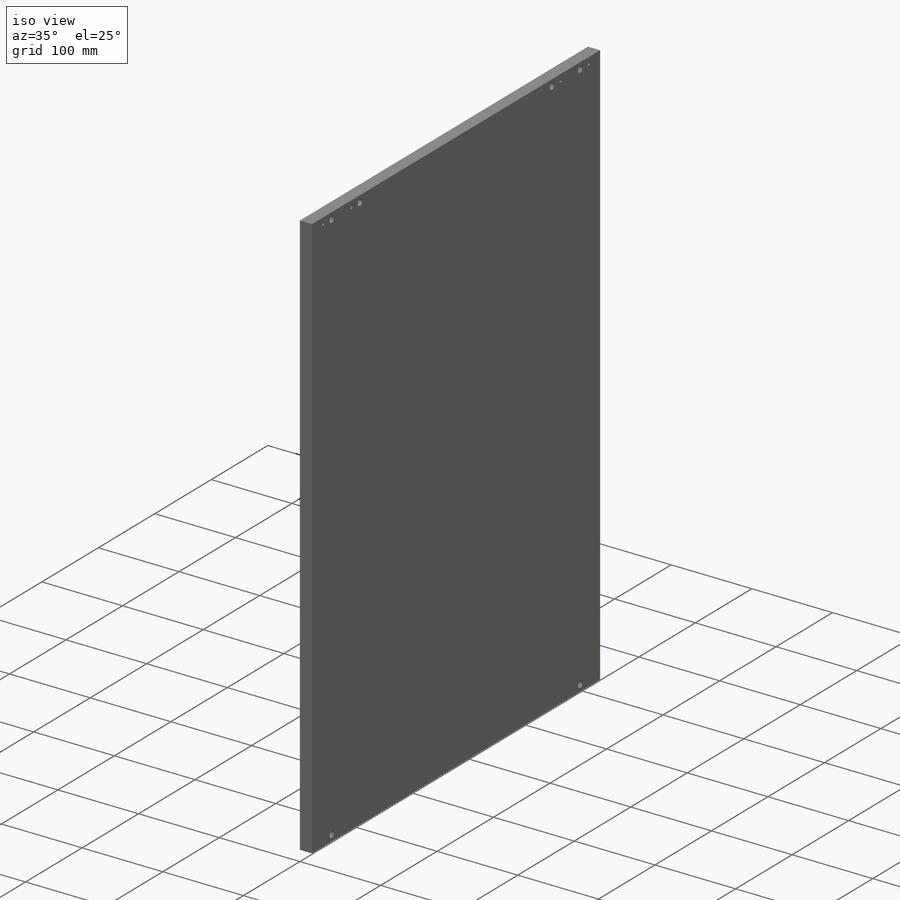
[diagram: iso view]
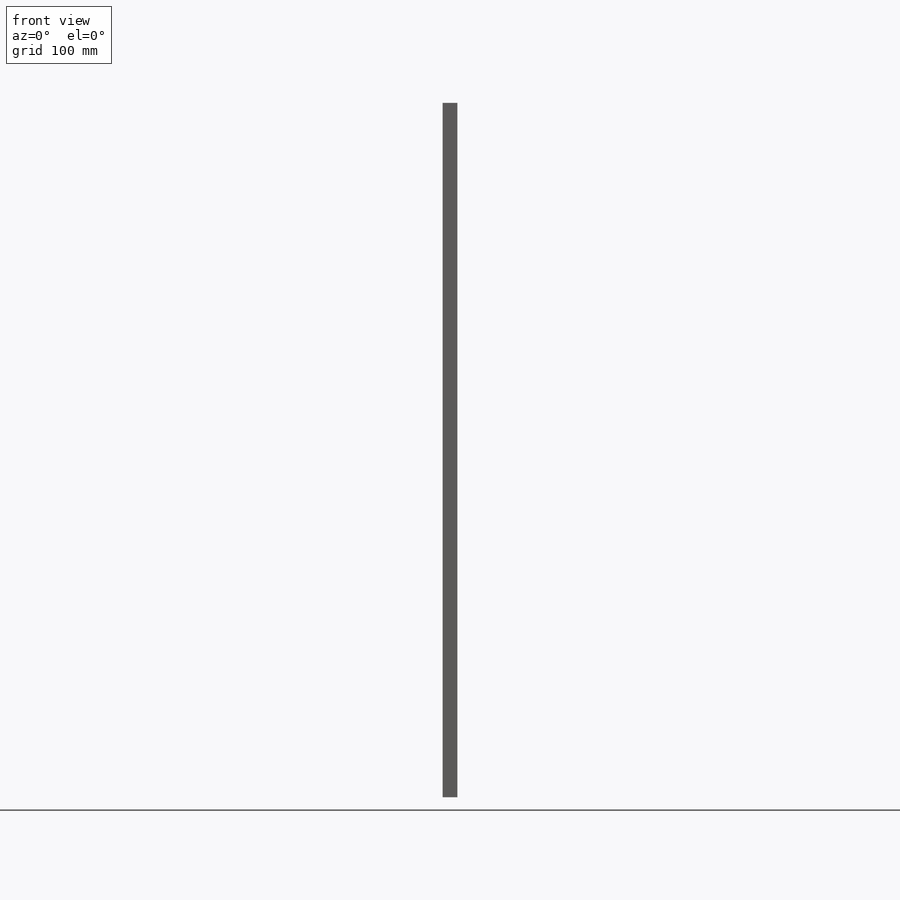
[diagram: front view]
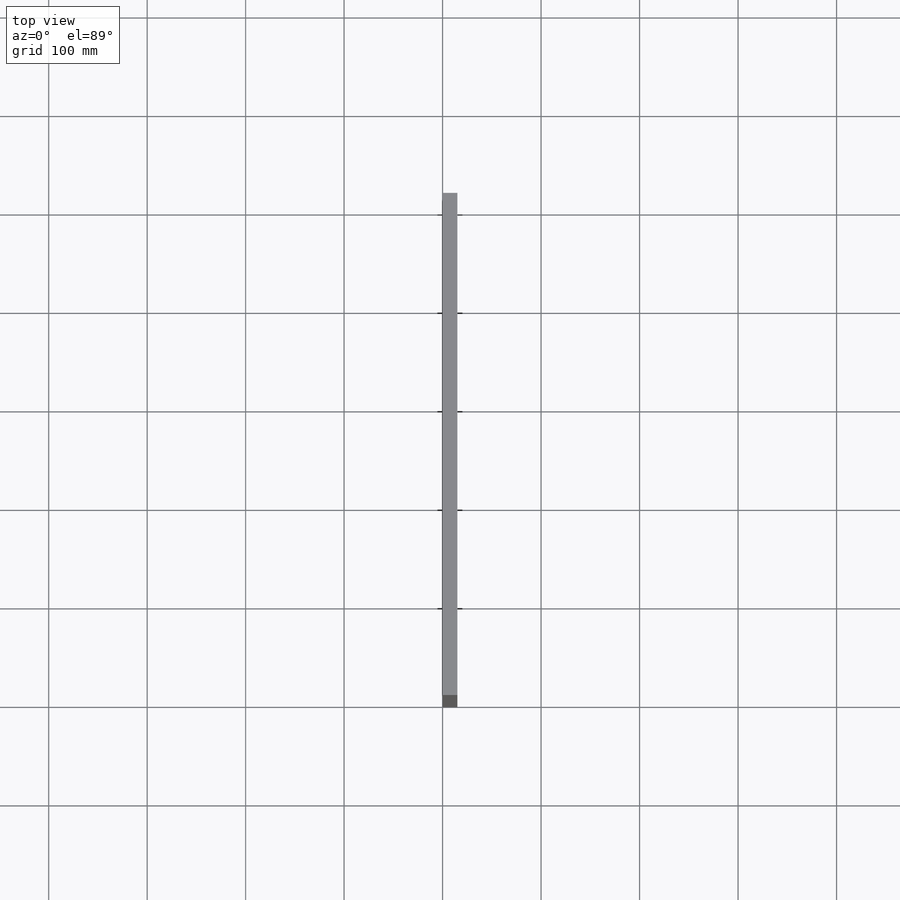
[diagram: top view]
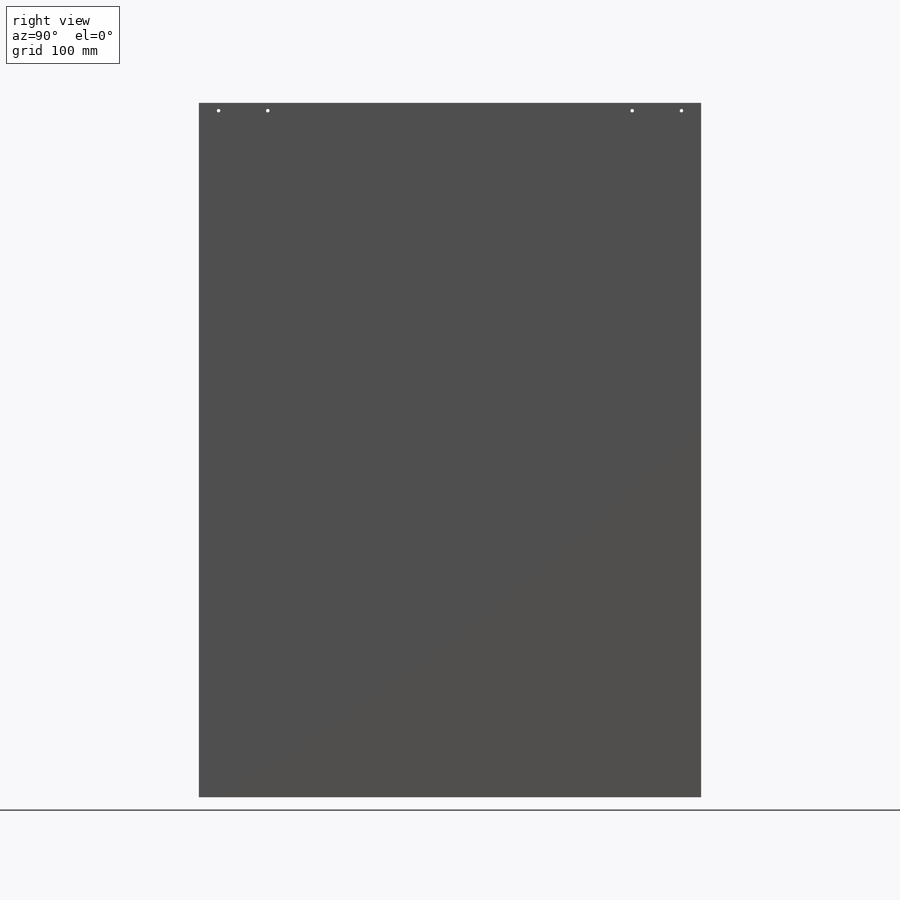
[diagram: right view]
SOLIDWORKS PART (.sldprt)
format: sldprt  version: not decoded by parser v0  size: 286,208 bytes
history: native  units: mm
features: sketch x3, cut_extrude x2, material x1, extrude x1 (+13 scaffold rows collapsed)
feature tree (20):
  scaffold x13  (default folders/planes/origin — collapsed)
  material  "Pine"
  sketch  "Эскиз1"  dims[D1=510.0mm D2=705.0mm]
  extrude  "Вытянуть1"  Depth=15mm
  sketch  "Шканты"  dims[c1.D1=~30.820794mm c1.D2=~4.130192mm c1.D3=8.0mm c1.D6=~99.583208mm c2.D2=~56.412672mm c2.D4=70.0mm c2.D6=70.0mm c2.D7=8.0mm c2.D8=8.0mm c2.D9=8.0mm c2.D10=8.0mm c2.D1=8.0mm c3.D2=20.0mm c3.D3=35.0mm c3.D4=70.0mm c3.D5=85.0mm c3.D6=15.0mm c4.D2=8.0mm]
  cut_extrude  "Вырез-Вытянуть3"  Depth=10mm
  sketch  "Шурупы"  dims[c1.D1=~40.938206mm c1.D2=~4.230022mm c2.D1=8.0mm c2.D2=20.0mm c2.D3=70.0mm]
  cut_extrude  "Вырез-Вытянуть4"  Depth=15mm
decode coverage: 6 of 6 modeling features carry decoded parameters
note: ~ marks probable driven/reference dimensions
note: suppression state not decoded; provenance and decode notes live in map.json
